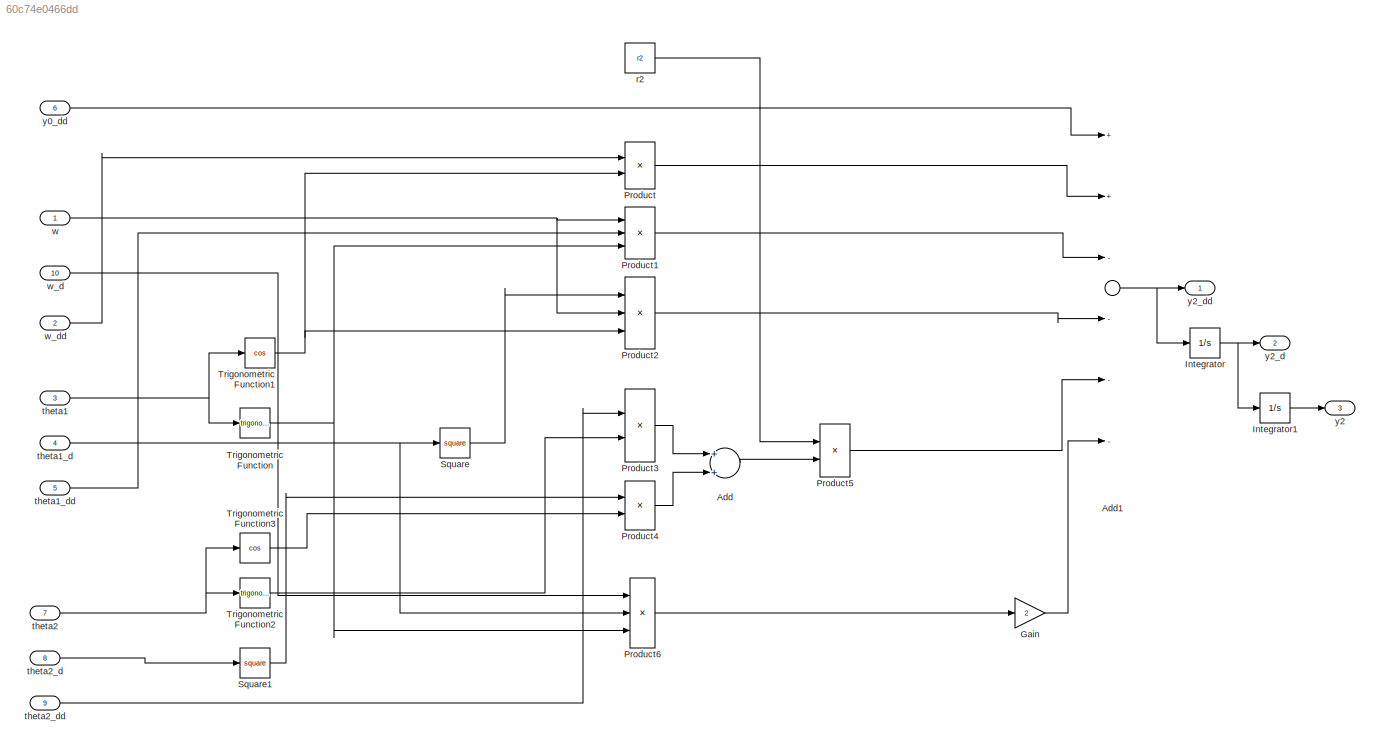
MODEL slx_60c74e0466dd
KIND model
CONFIG AbsTol = auto
CONFIG EnableMultiTasking = off
CONFIG FixedStep = auto
CONFIG MaxStep = auto
CONFIG MinStep = auto
CONFIG RelTol = 1e-3
CONFIG SampleTimeConstraint = Unconstrained
CONFIG Solver = VariableStepAuto
CONFIG SolverName = VariableStepAuto
CONFIG StartTime = 0.0
CONFIG StopTime = 10.0
BLOCK [Sum] Add
  InputSameDT = off
  OutDataTypeStr = Inherit: Inherit via internal rule
  Ports = [2, 1]
  SaturateOnIntegerOverflow = off
BLOCK [Sum] Add1
  InputSameDT = off
  Inputs = ++----
  OutDataTypeStr = Inherit: Inherit via internal rule
  Ports = [6, 1]
  SaturateOnIntegerOverflow = off
BLOCK [Gain] Gain
  Gain = 2
  OutDataTypeStr = Inherit: Inherit via internal rule
  ParamDataTypeStr = Inherit: Inherit via internal rule
  SaturateOnIntegerOverflow = off
BLOCK [Integrator] Integrator
  InitialCondition = ini_y2_d
  Ports = [1, 1]
BLOCK [Integrator] Integrator1
  InitialCondition = ini_y2
  Ports = [1, 1]
BLOCK [Product] Product
  InputSameDT = off
  OutDataTypeStr = Inherit: Inherit via internal rule
  Ports = [2, 1]
  RndMeth = Floor
  SaturateOnIntegerOverflow = off
BLOCK [Product] Product1
  InputSameDT = off
  Inputs = 3
  OutDataTypeStr = Inherit: Inherit via internal rule
  Ports = [3, 1]
  RndMeth = Floor
  SaturateOnIntegerOverflow = off
BLOCK [Product] Product2
  InputSameDT = off
  Inputs = 3
  OutDataTypeStr = Inherit: Inherit via internal rule
  Ports = [3, 1]
  RndMeth = Floor
  SaturateOnIntegerOverflow = off
BLOCK [Product] Product3
  InputSameDT = off
  OutDataTypeStr = Inherit: Inherit via internal rule
  Ports = [2, 1]
  RndMeth = Floor
  SaturateOnIntegerOverflow = off
BLOCK [Product] Product4
  InputSameDT = off
  OutDataTypeStr = Inherit: Inherit via internal rule
  Ports = [2, 1]
  RndMeth = Floor
  SaturateOnIntegerOverflow = off
BLOCK [Product] Product5
  InputSameDT = off
  OutDataTypeStr = Inherit: Inherit via internal rule
  Ports = [2, 1]
  RndMeth = Floor
  SaturateOnIntegerOverflow = off
BLOCK [Product] Product6
  InputSameDT = off
  Inputs = 3
  OutDataTypeStr = Inherit: Inherit via internal rule
  Ports = [3, 1]
  RndMeth = Floor
  SaturateOnIntegerOverflow = off
BLOCK [Math] Square
  Operator = square
  Ports = [1, 1]
  SignedPower = off
BLOCK [Math] Square1
  Operator = square
  Ports = [1, 1]
  SignedPower = off
BLOCK [Trigonometry] Trigonometric Function
  Ports = [1, 1]
BLOCK [Trigonometry] Trigonometric Function1
  Operator = cos
  Ports = [1, 1]
BLOCK [Trigonometry] Trigonometric Function2
  Ports = [1, 1]
BLOCK [Trigonometry] Trigonometric Function3
  Operator = cos
  Ports = [1, 1]
BLOCK [Constant] r2
  Value = r2
BLOCK [Inport] theta1
  IconDisplay = Port number
  Port = 3
BLOCK [Inport] theta1_d
  IconDisplay = Port number
  Port = 4
BLOCK [Inport] theta1_dd
  IconDisplay = Port number
  Port = 5
BLOCK [Inport] theta2
  IconDisplay = Port number
  Port = 7
BLOCK [Inport] theta2_d
  IconDisplay = Port number
  Port = 8
BLOCK [Inport] theta2_dd
  IconDisplay = Port number
  Port = 9
BLOCK [Inport] w
  IconDisplay = Port number
BLOCK [Inport] w_d
  IconDisplay = Port number
  Port = 10
BLOCK [Inport] w_dd
  IconDisplay = Port number
  Port = 2
BLOCK [Inport] y0_dd
  IconDisplay = Port number
  Port = 6
BLOCK [Outport] y2
  IconDisplay = Port number
  Port = 3
BLOCK [Outport] y2_d
  IconDisplay = Port number
  Port = 2
BLOCK [Outport] y2_dd
  IconDisplay = Port number
NET Add1:1 -> Integrator:1, y2_dd:1
LINE Add:1 -> Product5:2
LINE Gain:1 -> Add1:6
LINE Integrator1:1 -> y2:1
NET Integrator:1 -> Integrator1:1, y2_d:1
LINE Product1:1 -> Add1:3
LINE Product2:1 -> Add1:4
LINE Product3:1 -> Add:1
LINE Product4:1 -> Add:2
LINE Product5:1 -> Add1:5
LINE Product6:1 -> Gain:1
LINE Product:1 -> Add1:2
LINE Square1:1 -> Product4:1
LINE Square:1 -> Product2:1
NET Trigonometric Function1:1 -> Product2:3, Product:2
LINE Trigonometric Function2:1 -> Product3:2
LINE Trigonometric Function3:1 -> Product4:2
NET Trigonometric Function:1 -> Product1:3, Product6:3
LINE r2:1 -> Product5:1
NET theta1:1 -> Trigonometric Function1:1, Trigonometric Function:1
NET theta1_d:1 -> Product6:2, Square:1
LINE theta1_dd:1 -> Product1:2
NET theta2:1 -> Trigonometric Function2:1, Trigonometric Function3:1
LINE theta2_d:1 -> Square1:1
LINE theta2_dd:1 -> Product3:1
NET w:1 -> Product1:1, Product2:2
LINE w_d:1 -> Product6:1
LINE w_dd:1 -> Product:1
LINE y0_dd:1 -> Add1:1
note: NET lines group one-source signal fan-out (src -> all destinations, sorted); 1:1 wires keep LINE
